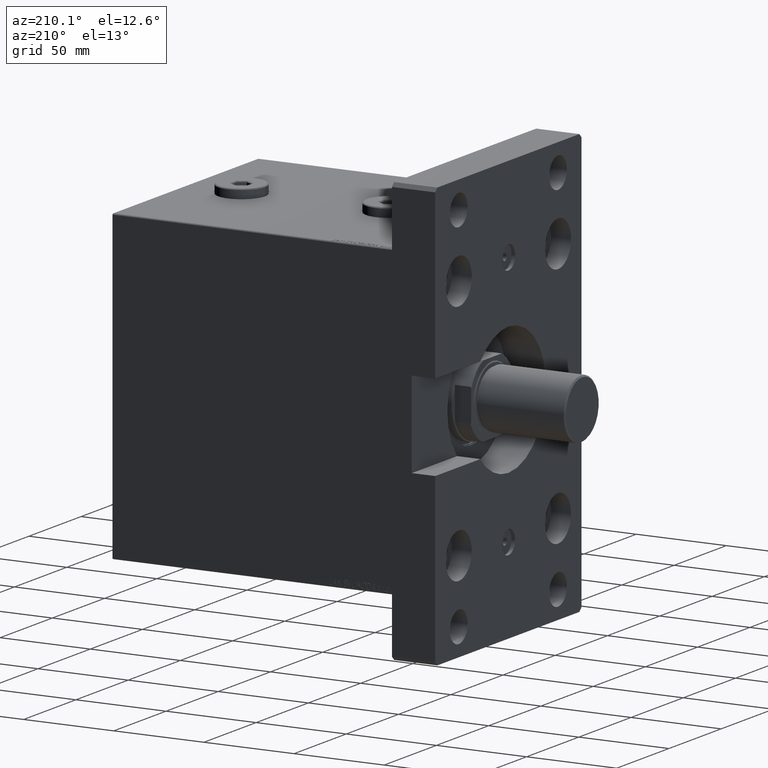
[diagram: clean part render]
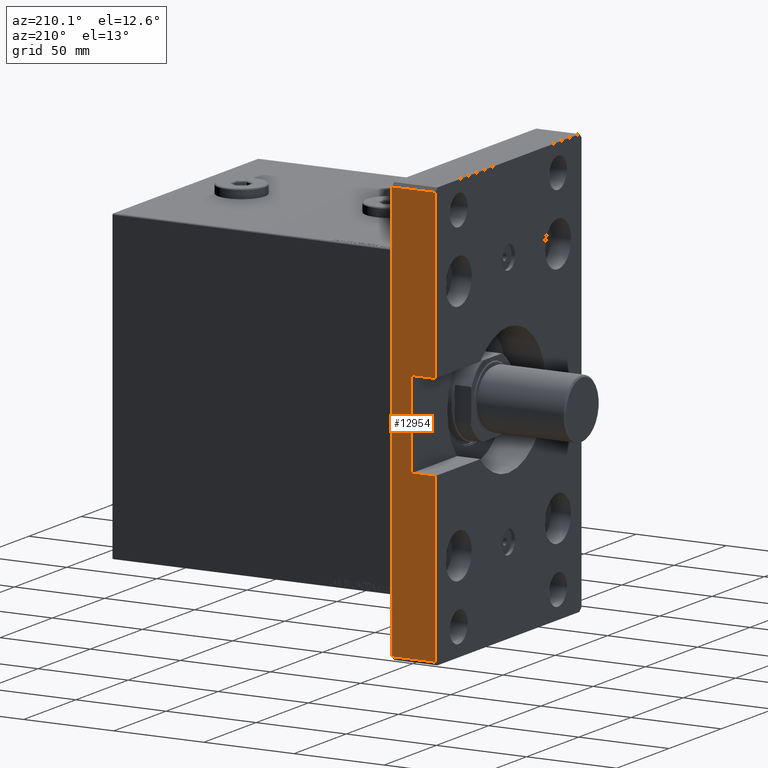
[diagram: same view with one face highlighted and labeled with its STEP entity id]
A machine part, auxiliary view. The second image highlights one B-rep face of the part: STEP entity #12954.
In plain terms, the highlighted planar face has unit normal (0, -1, 0).
Its self-contained STEP definition (entity closure, byte-faithful):
#161 = VERTEX_POINT ( 'NONE', #36987 ) ;
#2762 = DIRECTION ( 'NONE',  ( -1.000000000000000000, -0.000000000000000000, -0.000000000000000000 ) ) ;
#3552 = ORIENTED_EDGE ( 'NONE', *, *, #37299, .T. ) ;
#4686 = CARTESIAN_POINT ( 'NONE',  ( -24.00000000000000000, 69.99999999999998579, 24.00000000000000000 ) ) ;
#5082 = EDGE_CURVE ( 'NONE', #6666, #161, #45488, .T. ) ;
#5135 = VECTOR ( 'NONE', #21740, 1000.000000000000000 ) ;
#6080 = VERTEX_POINT ( 'NONE', #4686 ) ;
#6121 = ORIENTED_EDGE ( 'NONE', *, *, #20510, .T. ) ;
#6156 = VECTOR ( 'NONE', #2762, 1000.000000000000000 ) ;
#6396 = LINE ( 'NONE', #25295, #31994 ) ;
#6666 = VERTEX_POINT ( 'NONE', #7488 ) ;
#7372 = DIRECTION ( 'NONE',  ( -1.000000000000000000, -0.000000000000000000, -0.000000000000000000 ) ) ;
#7482 = DIRECTION ( 'NONE',  ( 0.000000000000000000, -0.000000000000000000, -1.000000000000000000 ) ) ;
#7488 = CARTESIAN_POINT ( 'NONE',  ( 115.4999999999999574, 70.00000000000000000, 0.000000000000000000 ) ) ;
#8210 = CARTESIAN_POINT ( 'NONE',  ( -117.5000000000000142, 70.00000000000000000, 24.00000000000000000 ) ) ;
#9122 = DIRECTION ( 'NONE',  ( -0.000000000000000000, -0.000000000000000000, 1.000000000000000000 ) ) ;
#9402 = CARTESIAN_POINT ( 'NONE',  ( -115.5000000000000142, 70.00000000000000000, 24.00000000000000000 ) ) ;
#9541 = VECTOR ( 'NONE', #9122, 1000.000000000000000 ) ;
#10112 = ORIENTED_EDGE ( 'NONE', *, *, #24114, .F. ) ;
#11011 = LINE ( 'NONE', #26504, #21419 ) ;
#11361 = LINE ( 'NONE', #41677, #27845 ) ;
#12247 = CARTESIAN_POINT ( 'NONE',  ( -117.5000000000000142, 70.00000000000000000, 0.000000000000000000 ) ) ;
#12529 = ORIENTED_EDGE ( 'NONE', *, *, #18046, .F. ) ;
#12954 = ADVANCED_FACE ( 'NONE', ( #15246 ), #45079, .F. ) ;
#13487 = CARTESIAN_POINT ( 'NONE',  ( -24.00000000000000000, 69.99999999999998579, 11.00000000000000178 ) ) ;
#14325 = EDGE_CURVE ( 'NONE', #17021, #6080, #41881, .T. ) ;
#15246 = FACE_OUTER_BOUND ( 'NONE', #46434, .T. ) ;
#16311 = ORIENTED_EDGE ( 'NONE', *, *, #45778, .F. ) ;
#17021 = VERTEX_POINT ( 'NONE', #13487 ) ;
#17163 = CARTESIAN_POINT ( 'NONE',  ( 115.4999999999999574, 70.00000000000000000, 24.00000000000000000 ) ) ;
#17390 = LINE ( 'NONE', #21019, #5135 ) ;
#17586 = LINE ( 'NONE', #36493, #47548 ) ;
#17825 = DIRECTION ( 'NONE',  ( -0.000000000000000000, -0.000000000000000000, 1.000000000000000000 ) ) ;
#18046 = EDGE_CURVE ( 'NONE', #25792, #17021, #6396, .T. ) ;
#19111 = DIRECTION ( 'NONE',  ( 0.000000000000000000, -1.000000000000000000, 0.000000000000000000 ) ) ;
#20510 = EDGE_CURVE ( 'NONE', #47016, #6666, #22954, .T. ) ;
#21019 = CARTESIAN_POINT ( 'NONE',  ( -115.5000000000000142, 70.00000000000000000, 24.00000000000000000 ) ) ;
#21419 = VECTOR ( 'NONE', #7372, 1000.000000000000000 ) ;
#21740 = DIRECTION ( 'NONE',  ( 0.000000000000000000, 0.000000000000000000, 1.000000000000000000 ) ) ;
#21840 = ORIENTED_EDGE ( 'NONE', *, *, #21896, .T. ) ;
#21896 = EDGE_CURVE ( 'NONE', #161, #36055, #17390, .T. ) ;
#22954 = LINE ( 'NONE', #37768, #32065 ) ;
#23153 = CARTESIAN_POINT ( 'NONE',  ( 24.00000000000000000, 69.99999999999998579, 24.00000000000000000 ) ) ;
#23190 = DIRECTION ( 'NONE',  ( 0.000000000000000000, 0.000000000000000000, -1.000000000000000000 ) ) ;
#24114 = EDGE_CURVE ( 'NONE', #6080, #36055, #11361, .T. ) ;
#25295 = CARTESIAN_POINT ( 'NONE',  ( -24.00000000000000000, 69.99999999999998579, 11.00000000000000178 ) ) ;
#25551 = CARTESIAN_POINT ( 'NONE',  ( 24.00000000000000000, 69.99999999999998579, 11.00000000000000178 ) ) ;
#25792 = VERTEX_POINT ( 'NONE', #25551 ) ;
#26504 = CARTESIAN_POINT ( 'NONE',  ( -117.5000000000000142, 70.00000000000000000, 24.00000000000000000 ) ) ;
#26528 = AXIS2_PLACEMENT_3D ( 'NONE', #8210, #19111, #7482 ) ;
#27268 = ORIENTED_EDGE ( 'NONE', *, *, #5082, .T. ) ;
#27845 = VECTOR ( 'NONE', #38260, 1000.000000000000000 ) ;
#28369 = ORIENTED_EDGE ( 'NONE', *, *, #14325, .F. ) ;
#31994 = VECTOR ( 'NONE', #36450, 1000.000000000000000 ) ;
#32065 = VECTOR ( 'NONE', #23190, 1000.000000000000000 ) ;
#36055 = VERTEX_POINT ( 'NONE', #9402 ) ;
#36450 = DIRECTION ( 'NONE',  ( -1.000000000000000000, -0.000000000000000000, -0.000000000000000000 ) ) ;
#36493 = CARTESIAN_POINT ( 'NONE',  ( 24.00000000000000000, 69.99999999999998579, 11.00000000000000178 ) ) ;
#36987 = CARTESIAN_POINT ( 'NONE',  ( -115.5000000000000142, 70.00000000000000000, 0.000000000000000000 ) ) ;
#37299 = EDGE_CURVE ( 'NONE', #25792, #44608, #17586, .T. ) ;
#37768 = CARTESIAN_POINT ( 'NONE',  ( 115.5000000000000142, 70.00000000000000000, 24.00000000000000000 ) ) ;
#38260 = DIRECTION ( 'NONE',  ( -1.000000000000000000, -0.000000000000000000, -0.000000000000000000 ) ) ;
#41677 = CARTESIAN_POINT ( 'NONE',  ( -117.5000000000000142, 70.00000000000000000, 24.00000000000000000 ) ) ;
#41881 = LINE ( 'NONE', #42830, #9541 ) ;
#42830 = CARTESIAN_POINT ( 'NONE',  ( -24.00000000000000000, 69.99999999999998579, 11.00000000000000178 ) ) ;
#44608 = VERTEX_POINT ( 'NONE', #23153 ) ;
#45079 = PLANE ( 'NONE',  #26528 ) ;
#45488 = LINE ( 'NONE', #12247, #6156 ) ;
#45778 = EDGE_CURVE ( 'NONE', #47016, #44608, #11011, .T. ) ;
#46434 = EDGE_LOOP ( 'NONE', ( #16311, #6121, #27268, #21840, #10112, #28369, #12529, #3552 ) ) ;
#47016 = VERTEX_POINT ( 'NONE', #17163 ) ;
#47548 = VECTOR ( 'NONE', #17825, 1000.000000000000000 ) ;